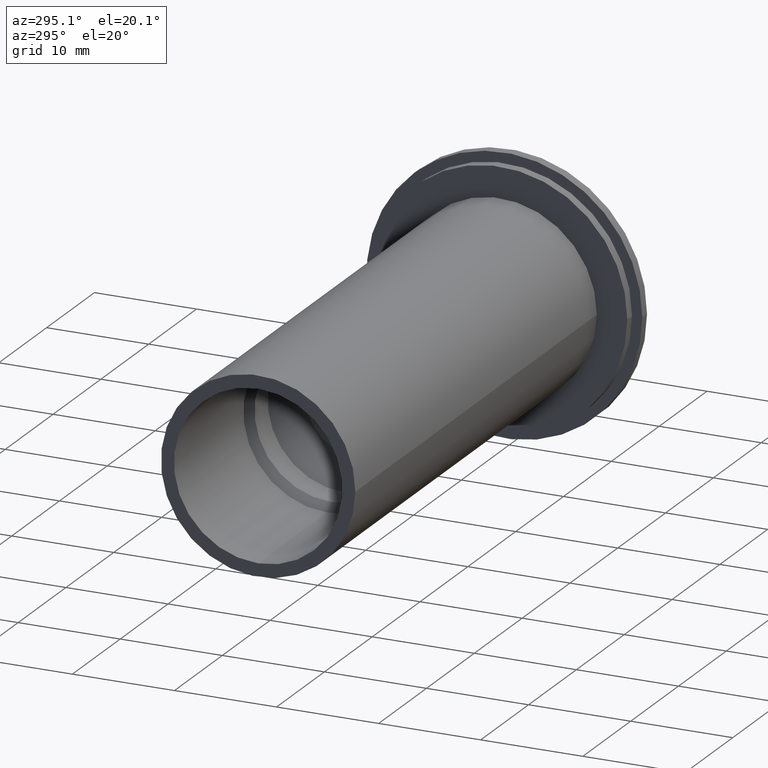
[diagram: clean part render]
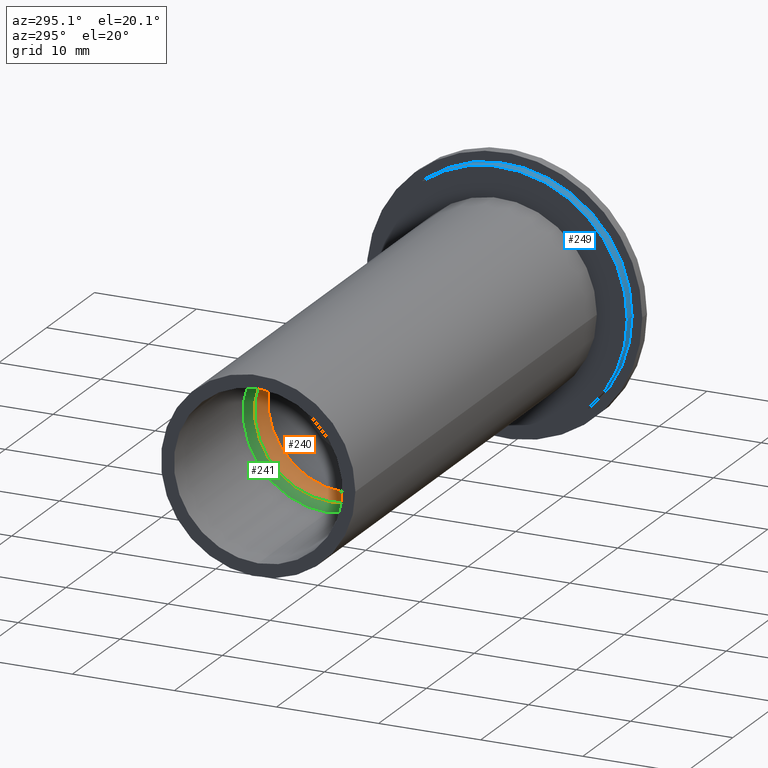
[diagram: same view with three faces highlighted in distinct colors, each labeled with its STEP entity id]
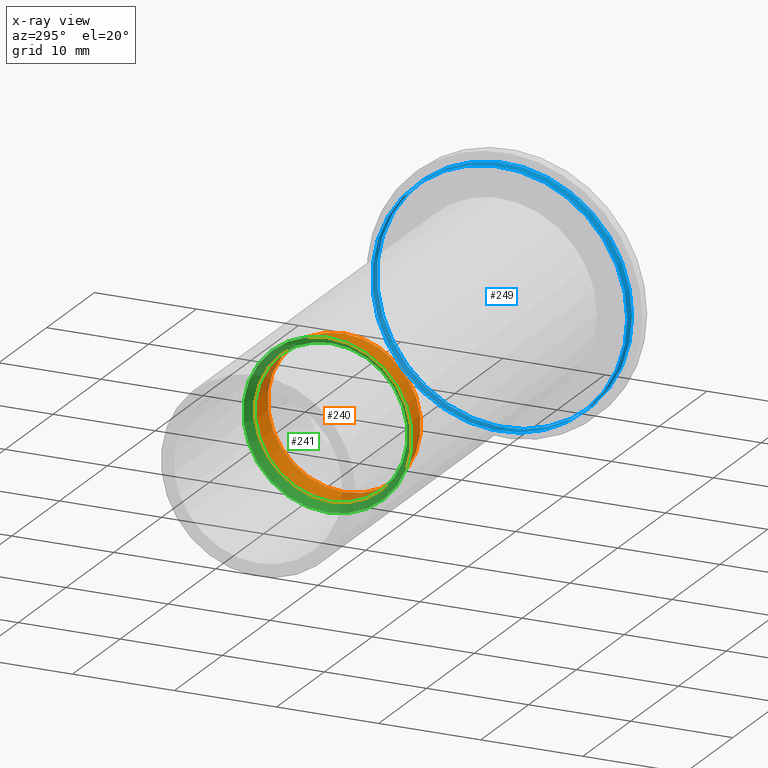
[diagram: x-ray of the same camera — body ghosted, the three highlighted faces saturated]
A machine part, auxiliary view with three faces highlighted in distinct colors.
The next image is the same camera in x-ray (body ghosted, the three faces saturated) — at least one of them is partly hidden behind the body in this view.
Their STEP definitions:

[orange] entity #240 — the highlighted cylindrical surface (bore or boss wall) has radius 7.5 mm, axis along (-1, 0, 0).
#98=FACE_OUTER_BOUND('',#110,.T.);
#110=EDGE_LOOP('',(#200,#201,#202,#203));
#126=LINE('',#422,#134);
#134=VECTOR('',#334,7.5);
#143=CIRCLE('',#278,7.5);
#144=CIRCLE('',#280,7.5);
#159=VERTEX_POINT('',#416);
#160=VERTEX_POINT('',#420);
#173=EDGE_CURVE('',#159,#159,#143,.T.);
#175=EDGE_CURVE('',#160,#160,#144,.T.);
#176=EDGE_CURVE('',#160,#159,#126,.T.);
#200=ORIENTED_EDGE('',*,*,#175,.F.);
#201=ORIENTED_EDGE('',*,*,#176,.T.);
#202=ORIENTED_EDGE('',*,*,#173,.F.);
#203=ORIENTED_EDGE('',*,*,#176,.F.);
#233=CYLINDRICAL_SURFACE('',#279,7.5);
#240=ADVANCED_FACE('',(#98),#233,.F.);
#278=AXIS2_PLACEMENT_3D('',#417,#327,#328);
#279=AXIS2_PLACEMENT_3D('',#419,#330,#331);
#280=AXIS2_PLACEMENT_3D('',#421,#332,#333);
#327=DIRECTION('center_axis',(-1.,0.,0.));
#328=DIRECTION('ref_axis',(0.,0.,1.));
#330=DIRECTION('center_axis',(-1.,0.,0.));
#331=DIRECTION('ref_axis',(0.,0.,1.));
#332=DIRECTION('center_axis',(1.,0.,0.));
#333=DIRECTION('ref_axis',(0.,0.,1.));
#334=DIRECTION('',(1.,0.,0.));
#416=CARTESIAN_POINT('',(-34.5,-9.18485099360515E-16,-7.5));
#417=CARTESIAN_POINT('Origin',(-34.5,0.,0.));
#419=CARTESIAN_POINT('Origin',(-43.5,0.,0.));
#420=CARTESIAN_POINT('',(-37.25,9.18485099360515E-16,-7.5));
#421=CARTESIAN_POINT('Origin',(-37.25,0.,0.));
#422=CARTESIAN_POINT('',(-43.5,-9.18485099360515E-16,-7.5));

[blue] entity #249 — the highlighted cylindrical surface (bore or boss wall) has radius 12.5 mm, axis along (1, 0, 0).
#107=FACE_OUTER_BOUND('',#123,.T.);
#123=EDGE_LOOP('',(#228,#229,#230,#231));
#131=LINE('',#452,#139);
#139=VECTOR('',#373,12.5);
#148=CIRCLE('',#287,12.5);
#152=CIRCLE('',#296,12.5);
#164=VERTEX_POINT('',#434);
#168=VERTEX_POINT('',#449);
#182=EDGE_CURVE('',#164,#164,#148,.T.);
#188=EDGE_CURVE('',#168,#168,#152,.T.);
#189=EDGE_CURVE('',#164,#168,#131,.T.);
#228=ORIENTED_EDGE('',*,*,#182,.F.);
#229=ORIENTED_EDGE('',*,*,#189,.T.);
#230=ORIENTED_EDGE('',*,*,#188,.T.);
#231=ORIENTED_EDGE('',*,*,#189,.F.);
#237=CYLINDRICAL_SURFACE('',#297,12.5);
#249=ADVANCED_FACE('',(#107),#237,.T.);
#287=AXIS2_PLACEMENT_3D('',#435,#349,#350);
#296=AXIS2_PLACEMENT_3D('',#450,#369,#370);
#297=AXIS2_PLACEMENT_3D('',#451,#371,#372);
#349=DIRECTION('center_axis',(1.,0.,0.));
#350=DIRECTION('ref_axis',(0.,0.,-1.));
#369=DIRECTION('center_axis',(1.,0.,0.));
#370=DIRECTION('ref_axis',(0.,0.,-1.));
#371=DIRECTION('center_axis',(1.,0.,0.));
#372=DIRECTION('ref_axis',(0.,1.,0.));
#373=DIRECTION('',(-1.,0.,0.));
#434=CARTESIAN_POINT('',(-0.999999999999996,-12.5,-1.53080849893419E-15));
#435=CARTESIAN_POINT('Origin',(-0.999999999999996,0.,0.));
#449=CARTESIAN_POINT('',(-2.,-12.5,-1.53080849893419E-15));
#450=CARTESIAN_POINT('Origin',(-2.,0.,0.));
#451=CARTESIAN_POINT('Origin',(-1.5,0.,0.));
#452=CARTESIAN_POINT('',(-1.5,-12.5,-1.53080849893419E-15));

[green] entity #241 — the highlighted conical surface has half-angle 45 deg.
#95=CONICAL_SURFACE('',#281,4.125,0.785398163397448);
#99=FACE_OUTER_BOUND('',#111,.T.);
#111=EDGE_LOOP('',(#204,#205,#206,#207));
#127=LINE('',#426,#135);
#135=VECTOR('',#339,4.125);
#144=CIRCLE('',#280,7.5);
#145=CIRCLE('',#282,8.25);
#160=VERTEX_POINT('',#420);
#161=VERTEX_POINT('',#424);
#175=EDGE_CURVE('',#160,#160,#144,.T.);
#177=EDGE_CURVE('',#161,#161,#145,.T.);
#178=EDGE_CURVE('',#161,#160,#127,.T.);
#204=ORIENTED_EDGE('',*,*,#177,.T.);
#205=ORIENTED_EDGE('',*,*,#178,.T.);
#206=ORIENTED_EDGE('',*,*,#175,.T.);
#207=ORIENTED_EDGE('',*,*,#178,.F.);
#241=ADVANCED_FACE('',(#99),#95,.F.);
#280=AXIS2_PLACEMENT_3D('',#421,#332,#333);
#281=AXIS2_PLACEMENT_3D('',#423,#335,#336);
#282=AXIS2_PLACEMENT_3D('',#425,#337,#338);
#332=DIRECTION('center_axis',(1.,0.,0.));
#333=DIRECTION('ref_axis',(0.,0.,1.));
#335=DIRECTION('center_axis',(-1.,0.,0.));
#336=DIRECTION('ref_axis',(0.,0.,1.));
#337=DIRECTION('center_axis',(-1.,0.,0.));
#338=DIRECTION('ref_axis',(0.,0.,1.));
#339=DIRECTION('',(0.707106781186548,8.65956056235493E-17,0.707106781186547));
#420=CARTESIAN_POINT('',(-37.25,9.18485099360515E-16,-7.5));
#421=CARTESIAN_POINT('Origin',(-37.25,0.,0.));
#423=CARTESIAN_POINT('Origin',(-33.875,0.,0.));
#424=CARTESIAN_POINT('',(-38.,-1.01033360929657E-15,-8.25));
#425=CARTESIAN_POINT('Origin',(-38.,0.,0.));
#426=CARTESIAN_POINT('',(-33.875,-5.05166804648283E-16,-4.125));